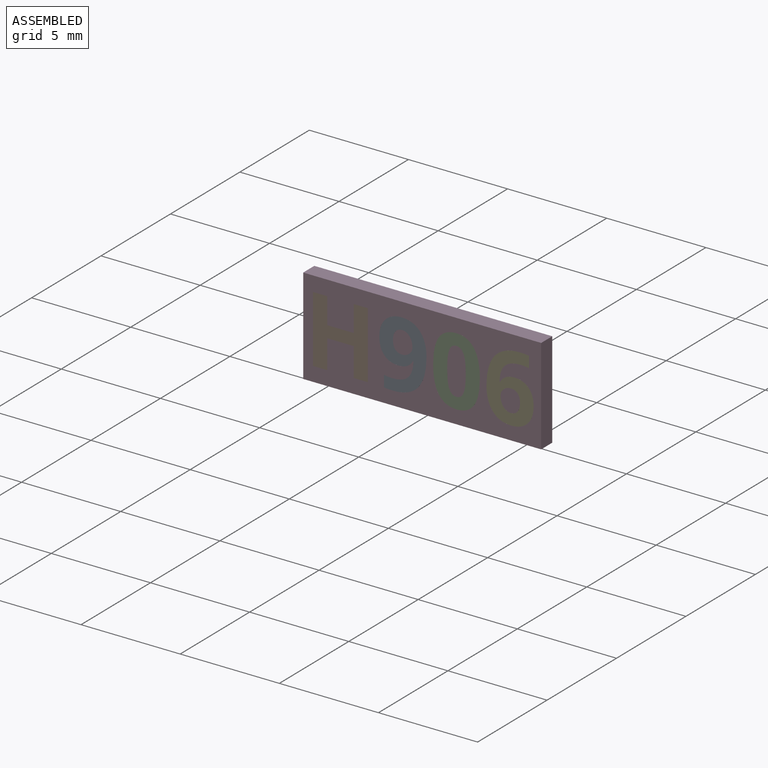
[diagram: assembled view]
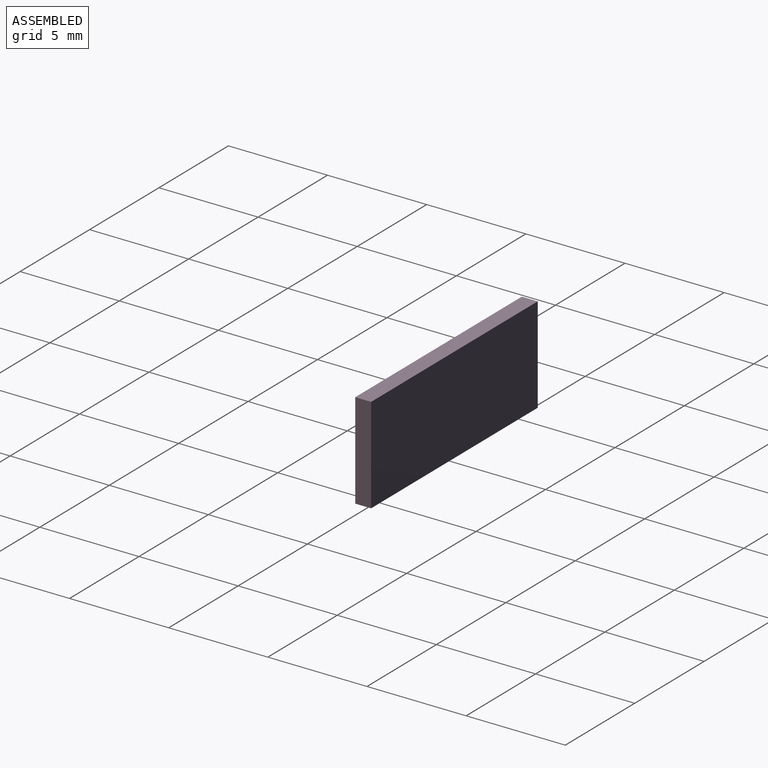
[diagram: assembled view, second angle]
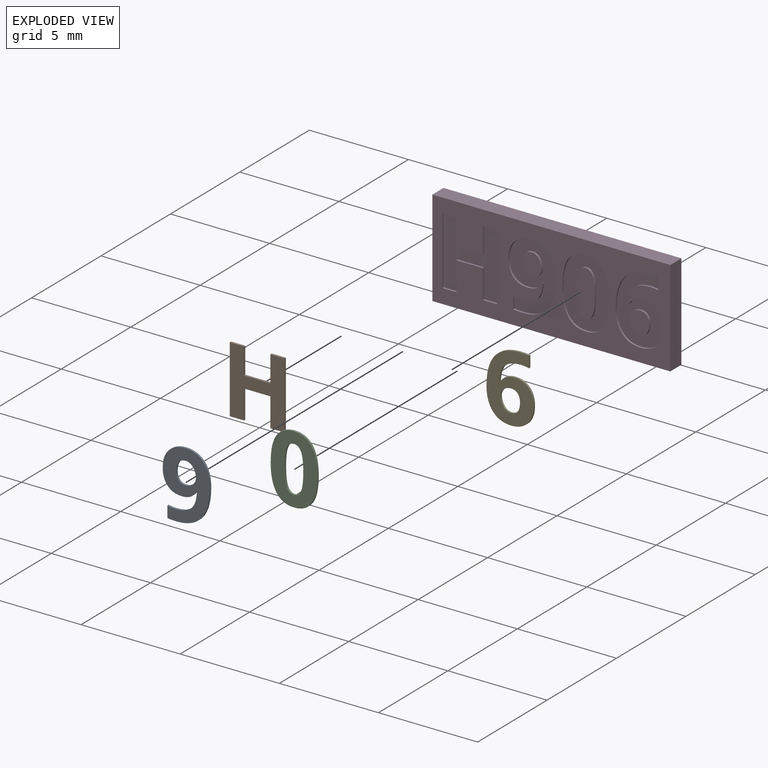
[diagram: exploded view]
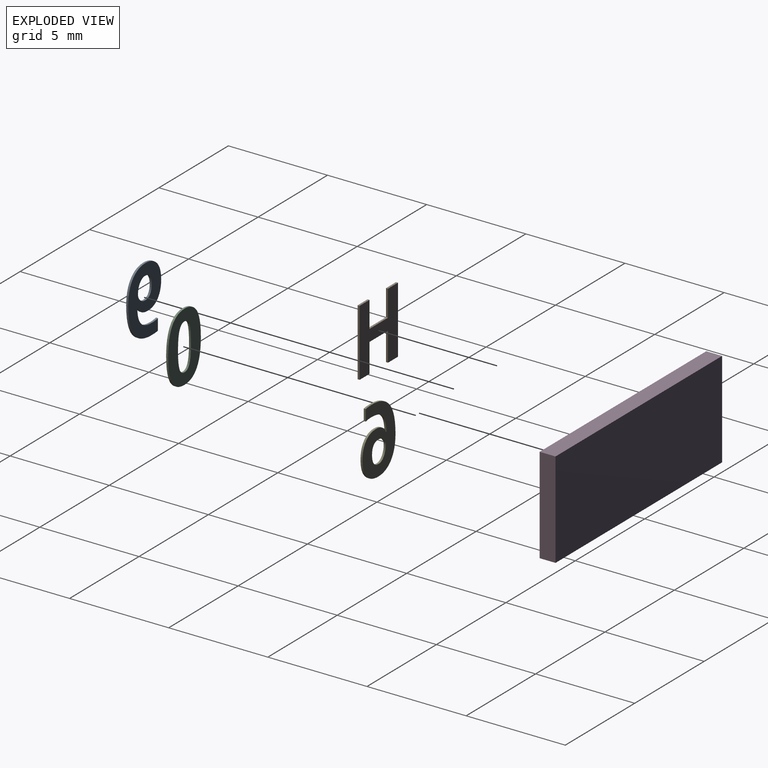
[diagram: exploded view, second angle]
ASSEMBLY  parts=5 mates=4
PART A: 28 faces, bbox 2.4x0.1x3.5 mm
  f0: plane 3.46x2.38mm, normal (0,-1,0), area 4.8mm2, adj f1,f2,f3,f4,f5,f6,f7,f8
  f1: extruded ~0.51x0.43mm, area 0.1mm2, adj f0,f2,f21,f23
  f2: extruded ~0.65x0.18mm, area 0.1mm2, adj f0,f1,f3,f21
  f3: extruded ~0.84x0.31mm, area 0.1mm2, adj f0,f2,f4,f21
  f4: extruded ~0.86x0.31mm, area 0.1mm2, adj f0,f3,f5,f21
  f5: extruded ~0.78x0.25mm, area 0.1mm2, adj f0,f4,f6,f21
  f6: extruded ~0.69x0.28mm, area 0.1mm2, adj f0,f5,f7,f21
  f7: extruded ~0.44x0.1mm, area 0mm2, adj f0,f6,f8,f21
  f8: extruded ~0.31x0.3mm, area 0mm2, adj f0,f7,f9,f21
  f9: plane 0.1x0.03mm, normal (0,0,-1), area 0mm2, adj f0,f8,f10,f21
  f10: extruded ~0.62x0.14mm, area 0.1mm2, adj f0,f9,f11,f21
  f11: extruded ~0.35x0.33mm, area 0mm2, adj f0,f10,f12,f21
  f12: extruded ~0.59x0.1mm, area 0.1mm2, adj f0,f11,f13,f21
  f13: extruded ~0.41x0.1mm, area 0mm2, adj f0,f12,f14,f21
  f14: plane 0.57x0.1mm, normal (-1,0,0), area 0.1mm2, adj f0,f13,f15,f21
  f15: extruded ~0.45x0.1mm, area 0mm2, adj f0,f14,f21,f22
  f16: extruded ~0.46x0.14mm, area 0mm2, adj f0,f17,f21,f26
  f17: extruded ~0.33x0.15mm, area 0mm2, adj f0,f16,f18,f21
  f18: extruded ~0.37x0.14mm, area 0mm2, adj f0,f17,f19,f21
  f19: extruded ~0.34x0.14mm, area 0mm2, adj f0,f18,f20,f21
  f20: extruded ~0.39x0.11mm, area 0mm2, adj f0,f19,f21,f25
  f21: plane 3.46x2.38mm, normal (0,1,0), area 4.8mm2, adj f1,f2,f3,f4,f5,f6,f7,f8
  f22: extruded ~1.27x0.49mm, area 0.1mm2, adj f0,f15,f21,f24
  f23: extruded ~0.79x0.15mm, area 0.1mm2, adj f0,f1,f21,f24
  f24: extruded ~1.49x0.42mm, area 0.2mm2, adj f0,f21,f22,f23
  f25: extruded ~0.44x0.12mm, area 0mm2, adj f0,f20,f21,f27
  f26: extruded ~0.37x0.19mm, area 0mm2, adj f0,f16,f21,f27
  f27: extruded ~0.35x0.15mm, area 0mm2, adj f0,f21,f25,f26
PART B: 14 faces, bbox 2.8x0.1x3.4 mm
  f0: plane 3.37x2.76mm, normal (0,-1,0), area 5.6mm2, adj f1,f2,f3,f4,f5,f6,f7,f8
  f1: plane 0.71x0.1mm, normal (0,0,1), area 0.1mm2, adj f0,f2,f10,f12
  f2: plane 1.32x0.1mm, normal (-1,0,0), area 0.1mm2, adj f0,f1,f3,f10
  f3: plane 1.33x0.1mm, normal (0,0,1), area 0.1mm2, adj f0,f2,f4,f10
  f4: plane 1.32x0.1mm, normal (1,0,0), area 0.1mm2, adj f0,f3,f5,f10
  f5: plane 0.72x0.1mm, normal (0,0,1), area 0.1mm2, adj f0,f4,f6,f10
  f6: plane 3.37x0.1mm, normal (-1,0,0), area 0.3mm2, adj f0,f5,f7,f10
  f7: plane 0.72x0.1mm, normal (0,0,-1), area 0.1mm2, adj f0,f6,f8,f10
  f8: plane 1.46x0.1mm, normal (1,0,0), area 0.1mm2, adj f0,f7,f9,f10
  f9: plane 1.33x0.1mm, normal (0,0,-1), area 0.1mm2, adj f0,f8,f10,f11
  f10: plane 3.37x2.76mm, normal (0,1,0), area 5.6mm2, adj f1,f2,f3,f4,f5,f6,f7,f8
  f11: plane 1.46x0.1mm, normal (-1,0,0), area 0.1mm2, adj f0,f9,f10,f13
  f12: plane 3.37x0.1mm, normal (1,0,0), area 0.3mm2, adj f0,f1,f10,f13
  f13: plane 0.71x0.1mm, normal (0,0,-1), area 0.1mm2, adj f0,f10,f11,f12
PART C: 18 faces, bbox 2.4x0.1x3.5 mm
  f0: plane 3.47x2.36mm, normal (0,-1,0), area 5mm2, adj f1,f2,f3,f4,f5,f6,f7,f8
  f1: extruded ~0.88x0.44mm, area 0.1mm2, adj f0,f2,f11,f13
  f2: extruded ~0.89x0.42mm, area 0.1mm2, adj f0,f1,f3,f11
  f3: extruded ~1.32x0.29mm, area 0.1mm2, adj f0,f2,f4,f11
  f4: extruded ~1.29x0.3mm, area 0.1mm2, adj f0,f3,f5,f11
  f5: extruded ~0.88x0.44mm, area 0.1mm2, adj f0,f4,f11,f12
  f6: extruded ~0.36x0.27mm, area 0mm2, adj f0,f7,f11,f16
  f7: extruded ~0.36x0.27mm, area 0mm2, adj f0,f6,f8,f11
  f8: extruded ~0.89x0.11mm, area 0.1mm2, adj f0,f7,f9,f11
  f9: extruded ~0.89x0.11mm, area 0.1mm2, adj f0,f8,f10,f11
  f10: extruded ~0.36x0.27mm, area 0mm2, adj f0,f9,f11,f15
  f11: plane 3.47x2.36mm, normal (0,1,0), area 5mm2, adj f1,f2,f3,f4,f5,f6,f7,f8
  f12: extruded ~0.89x0.42mm, area 0.1mm2, adj f0,f5,f11,f14
  f13: extruded ~1.3x0.3mm, area 0.1mm2, adj f0,f1,f11,f14
  f14: extruded ~1.31x0.29mm, area 0.1mm2, adj f0,f11,f12,f13
  f15: extruded ~0.36x0.27mm, area 0mm2, adj f0,f10,f11,f17
  f16: extruded ~0.89x0.11mm, area 0.1mm2, adj f0,f6,f11,f17
  f17: extruded ~0.89x0.11mm, area 0.1mm2, adj f0,f11,f15,f16
PART D: 92 faces, bbox 12x0.8x4.9 mm
  f0: plane 12x4.85mm, normal (0,-1,0), area 34.3mm2, adj f1,f2,f3,f4,f6,f7,f8,f9
  f1: plane 12x0.8mm, normal (0,0,-1), area 9.6mm2, adj f0,f2,f4,f5
  f2: plane 4.85x0.8mm, normal (1,0,0), area 3.9mm2, adj f0,f1,f3,f5
  f3: plane 12x0.8mm, normal (0,0,1), area 9.6mm2, adj f0,f2,f4,f5
  f4: plane 4.85x0.8mm, normal (-1,0,0), area 3.9mm2, adj f0,f1,f3,f5
  f5: plane 12x4.85mm, normal (0,1,0), area 58.2mm2, adj f1,f2,f3,f4
  f6: extruded ~0.8x0.15mm, area 0.1mm2, adj f0,f7,f30,f31
  f7: extruded ~0.51x0.43mm, area 0.1mm2, adj f0,f6,f8,f31
  f8: extruded ~0.65x0.17mm, area 0.1mm2, adj f0,f7,f9,f31
  f9: extruded ~0.84x0.32mm, area 0.1mm2, adj f0,f8,f10,f31
  f10: extruded ~0.85x0.3mm, area 0.1mm2, adj f0,f9,f11,f31
  f11: extruded ~0.78x0.26mm, area 0.1mm2, adj f0,f10,f12,f31
  f12: extruded ~0.71x0.28mm, area 0.1mm2, adj f0,f11,f13,f31
  f13: extruded ~0.73x0.39mm, area 0.1mm2, adj f0,f12,f14,f31
  f14: plane 0.1x0.03mm, normal (0,0,-1), area 0mm2, adj f0,f13,f15,f31
  f15: extruded ~0.62x0.14mm, area 0.1mm2, adj f0,f14,f16,f31
  f16: extruded ~0.35x0.33mm, area 0mm2, adj f0,f15,f17,f31
  f17: extruded ~0.6x0.11mm, area 0.1mm2, adj f0,f16,f18,f31
  f18: extruded ~0.41x0.1mm, area 0mm2, adj f0,f17,f19,f31
  f19: plane 0.57x0.1mm, normal (-1,0,0), area 0.1mm2, adj f0,f18,f20,f31
  f20: extruded ~0.45x0.1mm, area 0mm2, adj f0,f19,f21,f31
  f21: extruded ~1.27x0.49mm, area 0.1mm2, adj f0,f20,f30,f31
  f22: extruded ~0.37x0.19mm, area 0mm2, adj f23,f29,f31,f32
  f23: extruded ~0.46x0.14mm, area 0mm2, adj f22,f24,f31,f32
  f24: extruded ~0.33x0.15mm, area 0mm2, adj f23,f25,f31,f32
  f25: extruded ~0.37x0.14mm, area 0mm2, adj f24,f26,f31,f32
  f26: extruded ~0.34x0.14mm, area 0mm2, adj f25,f27,f31,f32
  f27: extruded ~0.39x0.11mm, area 0mm2, adj f26,f28,f31,f32
  f28: extruded ~0.44x0.12mm, area 0mm2, adj f27,f29,f31,f32
  f29: extruded ~0.35x0.15mm, area 0mm2, adj f22,f28,f31,f32
  f30: extruded ~1.49x0.42mm, area 0.2mm2, adj f0,f6,f21,f31
  f31: plane 3.46x2.38mm, normal (0,-1,0), area 4.8mm2, adj f6,f7,f8,f9,f10,f11,f12,f13
  f32: plane 1.12x0.98mm, normal (0,-1,0), area 0.9mm2, adj f22,f23,f24,f25,f26,f27,f28,f29
  f33: extruded ~1.3x0.3mm, area 0.1mm2, adj f0,f34,f48,f49
  f34: extruded ~0.88x0.44mm, area 0.1mm2, adj f0,f33,f35,f49
  f35: extruded ~0.89x0.42mm, area 0.1mm2, adj f0,f34,f36,f49
  f36: extruded ~1.32x0.29mm, area 0.1mm2, adj f0,f35,f37,f49
  f37: extruded ~1.29x0.3mm, area 0.1mm2, adj f0,f36,f38,f49
  f38: extruded ~0.88x0.44mm, area 0.1mm2, adj f0,f37,f39,f49
  f39: extruded ~0.89x0.42mm, area 0.1mm2, adj f0,f38,f48,f49
  f40: extruded ~0.89x0.11mm, area 0.1mm2, adj f41,f47,f49,f50
  f41: extruded ~0.36x0.27mm, area 0mm2, adj f40,f42,f49,f50
  f42: extruded ~0.36x0.27mm, area 0mm2, adj f41,f43,f49,f50
  f43: extruded ~0.89x0.11mm, area 0.1mm2, adj f42,f44,f49,f50
  f44: extruded ~0.89x0.11mm, area 0.1mm2, adj f43,f45,f49,f50
  f45: extruded ~0.36x0.27mm, area 0mm2, adj f44,f46,f49,f50
  f46: extruded ~0.36x0.27mm, area 0mm2, adj f45,f47,f49,f50
  f47: extruded ~0.89x0.11mm, area 0.1mm2, adj f40,f46,f49,f50
  f48: extruded ~1.31x0.29mm, area 0.1mm2, adj f0,f33,f39,f49
  f49: plane 3.47x2.36mm, normal (0,-1,0), area 5mm2, adj f33,f34,f35,f36,f37,f38,f39,f40
  f50: plane 2.32x0.94mm, normal (0,-1,0), area 1.8mm2, adj f40,f41,f42,f43,f44,f45,f46,f47
  f51: extruded ~0.79x0.15mm, area 0.1mm2, adj f0,f52,f76,f77
  f52: extruded ~0.51x0.43mm, area 0.1mm2, adj f0,f51,f53,f77
  f53: extruded ~0.65x0.18mm, area 0.1mm2, adj f0,f52,f54,f77
  f54: extruded ~0.84x0.31mm, area 0.1mm2, adj f0,f53,f55,f77
  f55: extruded ~0.86x0.31mm, area 0.1mm2, adj f0,f54,f56,f77
  f56: extruded ~0.78x0.25mm, area 0.1mm2, adj f0,f55,f57,f77
  f57: extruded ~0.69x0.28mm, area 0.1mm2, adj f0,f56,f58,f77
  f58: extruded ~0.44x0.1mm, area 0mm2, adj f0,f57,f59,f77
  f59: extruded ~0.31x0.3mm, area 0mm2, adj f0,f58,f60,f77
  f60: plane 0.1x0.03mm, normal (0,0,1), area 0mm2, adj f0,f59,f61,f77
  f61: extruded ~0.62x0.14mm, area 0.1mm2, adj f0,f60,f62,f77
  f62: extruded ~0.35x0.33mm, area 0mm2, adj f0,f61,f63,f77
  f63: extruded ~0.59x0.1mm, area 0.1mm2, adj f0,f62,f64,f77
  f64: extruded ~0.41x0.1mm, area 0mm2, adj f0,f63,f65,f77
  f65: plane 0.57x0.1mm, normal (1,0,0), area 0.1mm2, adj f0,f64,f66,f77
  f66: extruded ~0.45x0.1mm, area 0mm2, adj f0,f65,f67,f77
  f67: extruded ~1.27x0.49mm, area 0.1mm2, adj f0,f66,f76,f77
  f68: extruded ~0.37x0.19mm, area 0mm2, adj f69,f75,f77,f78
  f69: extruded ~0.46x0.14mm, area 0mm2, adj f68,f70,f77,f78
  f70: extruded ~0.33x0.15mm, area 0mm2, adj f69,f71,f77,f78
  f71: extruded ~0.37x0.14mm, area 0mm2, adj f70,f72,f77,f78
  f72: extruded ~0.34x0.14mm, area 0mm2, adj f71,f73,f77,f78
  f73: extruded ~0.39x0.11mm, area 0mm2, adj f72,f74,f77,f78
  f74: extruded ~0.44x0.12mm, area 0mm2, adj f73,f75,f77,f78
  f75: extruded ~0.35x0.15mm, area 0mm2, adj f68,f74,f77,f78
  f76: extruded ~1.49x0.42mm, area 0.2mm2, adj f0,f51,f67,f77
  f77: plane 3.46x2.38mm, normal (0,-1,0), area 4.8mm2, adj f51,f52,f53,f54,f55,f56,f57,f58
  f78: plane 1.12x0.98mm, normal (0,-1,0), area 0.9mm2, adj f68,f69,f70,f71,f72,f73,f74,f75
  f79: plane 3.37x0.1mm, normal (-1,0,0), area 0.3mm2, adj f0,f80,f90,f91
  f80: plane 0.71x0.1mm, normal (0,0,-1), area 0.1mm2, adj f0,f79,f81,f91
  f81: plane 1.32x0.1mm, normal (1,0,0), area 0.1mm2, adj f0,f80,f82,f91
  f82: plane 1.33x0.1mm, normal (0,0,-1), area 0.1mm2, adj f0,f81,f83,f91
  f83: plane 1.32x0.1mm, normal (-1,0,0), area 0.1mm2, adj f0,f82,f84,f91
  f84: plane 0.72x0.1mm, normal (0,0,-1), area 0.1mm2, adj f0,f83,f85,f91
  f85: plane 3.37x0.1mm, normal (1,0,0), area 0.3mm2, adj f0,f84,f86,f91
  f86: plane 0.72x0.1mm, normal (0,0,1), area 0.1mm2, adj f0,f85,f87,f91
  f87: plane 1.46x0.1mm, normal (-1,0,0), area 0.1mm2, adj f0,f86,f88,f91
  f88: plane 1.33x0.1mm, normal (0,0,1), area 0.1mm2, adj f0,f87,f89,f91
  f89: plane 1.46x0.1mm, normal (1,0,0), area 0.1mm2, adj f0,f88,f90,f91
  f90: plane 0.71x0.1mm, normal (0,0,1), area 0.1mm2, adj f0,f79,f89,f91
  f91: plane 3.37x2.76mm, normal (0,-1,0), area 5.6mm2, adj f79,f80,f81,f82,f83,f84,f85,f86
PART E: 27 faces, bbox 2.4x0.1x3.5 mm
  f0: plane 3.46x2.38mm, normal (0,-1,0), area 4.8mm2, adj f1,f2,f3,f4,f5,f6,f7,f8
  f1: extruded ~0.51x0.43mm, area 0.1mm2, adj f0,f2,f20,f22
  f2: extruded ~0.65x0.17mm, area 0.1mm2, adj f0,f1,f3,f20
  f3: extruded ~0.84x0.32mm, area 0.1mm2, adj f0,f2,f4,f20
  f4: extruded ~0.85x0.3mm, area 0.1mm2, adj f0,f3,f5,f20
  f5: extruded ~0.78x0.26mm, area 0.1mm2, adj f0,f4,f6,f20
  f6: extruded ~0.71x0.28mm, area 0.1mm2, adj f0,f5,f7,f20
  f7: extruded ~0.73x0.39mm, area 0.1mm2, adj f0,f6,f8,f20
  f8: plane 0.1x0.03mm, normal (0,0,1), area 0mm2, adj f0,f7,f9,f20
  f9: extruded ~0.62x0.14mm, area 0.1mm2, adj f0,f8,f10,f20
  f10: extruded ~0.35x0.33mm, area 0mm2, adj f0,f9,f11,f20
  f11: extruded ~0.6x0.11mm, area 0.1mm2, adj f0,f10,f12,f20
  f12: extruded ~0.41x0.1mm, area 0mm2, adj f0,f11,f13,f20
  f13: plane 0.57x0.1mm, normal (1,0,0), area 0.1mm2, adj f0,f12,f14,f20
  f14: extruded ~0.45x0.1mm, area 0mm2, adj f0,f13,f20,f21
  f15: extruded ~0.46x0.14mm, area 0mm2, adj f0,f16,f20,f25
  f16: extruded ~0.33x0.15mm, area 0mm2, adj f0,f15,f17,f20
  f17: extruded ~0.37x0.14mm, area 0mm2, adj f0,f16,f18,f20
  f18: extruded ~0.34x0.14mm, area 0mm2, adj f0,f17,f19,f20
  f19: extruded ~0.39x0.11mm, area 0mm2, adj f0,f18,f20,f24
  f20: plane 3.46x2.38mm, normal (0,1,0), area 4.8mm2, adj f1,f2,f3,f4,f5,f6,f7,f8
  f21: extruded ~1.27x0.49mm, area 0.1mm2, adj f0,f14,f20,f23
  f22: extruded ~0.8x0.15mm, area 0.1mm2, adj f0,f1,f20,f23
  f23: extruded ~1.49x0.42mm, area 0.2mm2, adj f0,f20,f21,f22
  f24: extruded ~0.44x0.12mm, area 0mm2, adj f0,f19,f20,f26
  f25: extruded ~0.37x0.19mm, area 0mm2, adj f0,f15,f20,f26
  f26: extruded ~0.35x0.15mm, area 0mm2, adj f0,f20,f24,f25
PLACE A t=(-2.48,0.39,0)mm
PLACE B t=(-0.03,0.39,0)mm
PLACE C t=(-1.13,0.39,0)mm
PLACE D t=(-0.02,0.39,0)mm
PLACE E t=(2.92,0.39,0)mm
MATE fastened E.f0 <-> D.f0  axis (0,-1,0) through (5.37,-0.41,1.11)mm
MATE fastened B.f0 <-> D.f0  axis (0,-1,0) through (-5.52,-0.41,-1.7)mm
MATE fastened A.f0 <-> D.f0  axis (0,-1,0) through (-1.94,-0.41,-1.71)mm
MATE fastened C.f0 <-> D.f50  axis (0,-1,0) through (1.71,-0.41,-1.17)mm
